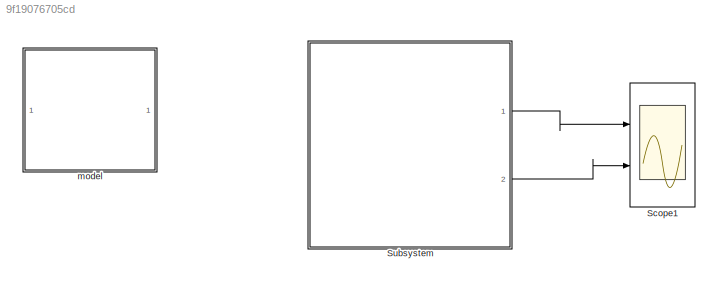
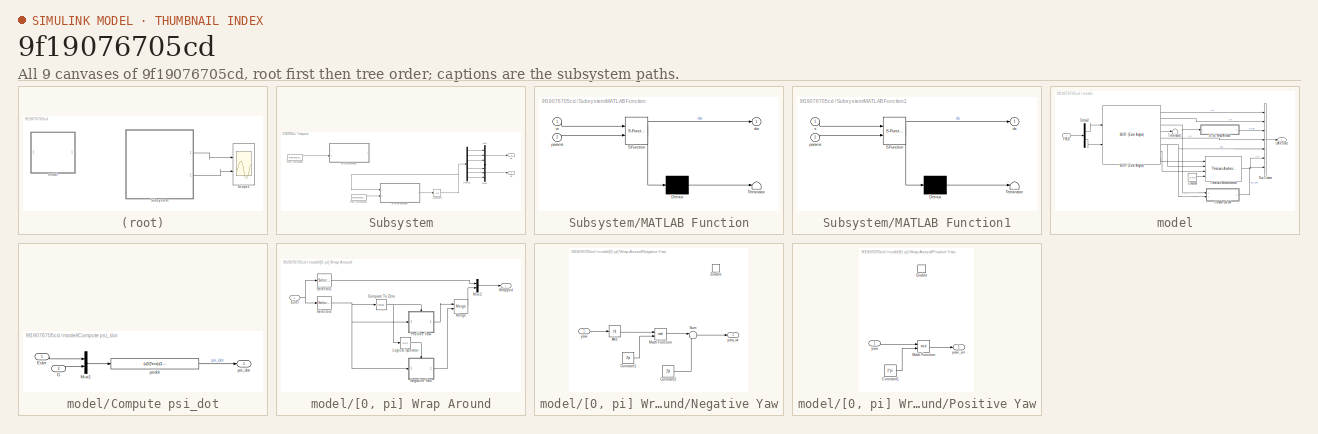
[diagram: thumbnail index - all 9 canvases of the model, root first then tree order]
MODEL slx_9f19076705cd
KIND model
BLOCK [Scope] Scope1
  Floating = off
  NumInputPorts = 2
  Ports = [2]
  ScopeSpecificationString = Simulink.scopes.TimeScopeBlockCfg('CurrentConfiguration', extmgr.ConfigurationSet(extmgr.Configuration('Core','General UI',true),extmgr.Configuration('Core','Source UI',true),extmgr.Configuration('Sources','WiredSimulink',true,'DataLoggingVariableName','ScopeData2'),extmgr.Configuration('Visuals','Time Domain',true,'SerializedDisplays',{struct('MinYLimReal','-10','MaxYLimReal','10','YLabelReal',''...<+1636ch>
BLOCK [SubSystem] Subsystem
  Ports = [0, 2]
  RequestExecContextInheritance = off
BLOCK [Demux] Subsystem/Demux
  Outputs = 6
  Ports = [1, 6]
BLOCK [FromWorkspace] Subsystem/From Workspace
  Commented = on
  VariableName = params
BLOCK [FromWorkspace] Subsystem/From Workspace1
  VariableName = params
BLOCK [Integrator] Subsystem/Integrator
  InitialCondition = params.s0
  Ports = [1, 1]
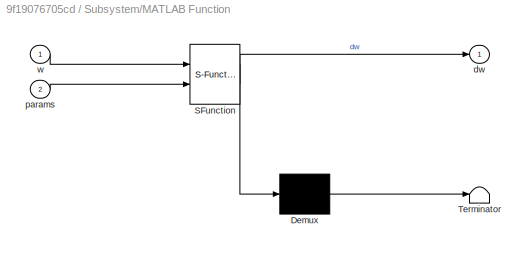
BLOCK [SubSystem] Subsystem/MATLAB Function
  Commented = on
  ErrorFcn = Stateflow.Translate.translate
  PermitHierarchicalResolution = ExplicitOnly
  Ports = [2, 1]
  RequestExecContextInheritance = off
  SFBlockType = MATLAB Function
  TreatAsAtomicUnit = on
BLOCK [Demux] Subsystem/MATLAB Function/ Demux 
  Outputs = 1
  Ports = [1, 1]
BLOCK [S-Function] Subsystem/MATLAB Function/ SFunction 
  EnableBusSupport = off
  FunctionName = sf_sfun
  PortCounts = [2 2]
  Ports = [2, 2]
  SFcnIsStateOwnerBlock = off
  SFunctionDeploymentMode = off
  Tag = Stateflow S-Function 3
BLOCK [Terminator] Subsystem/MATLAB Function/ Terminator 
BLOCK [Outport] Subsystem/MATLAB Function/dw
BLOCK [Inport] Subsystem/MATLAB Function/params
  Port = 2
BLOCK [Inport] Subsystem/MATLAB Function/w
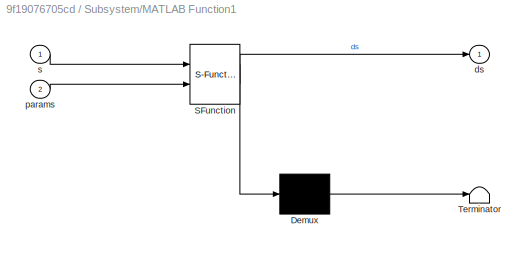
BLOCK [SubSystem] Subsystem/MATLAB Function1
  ErrorFcn = Stateflow.Translate.translate
  PermitHierarchicalResolution = ExplicitOnly
  Ports = [2, 1]
  RequestExecContextInheritance = off
  SFBlockType = MATLAB Function
  TreatAsAtomicUnit = on
BLOCK [Demux] Subsystem/MATLAB Function1/ Demux 
  Outputs = 1
  Ports = [1, 1]
BLOCK [S-Function] Subsystem/MATLAB Function1/ SFunction 
  EnableBusSupport = off
  FunctionName = sf_sfun
  PortCounts = [2 2]
  Ports = [2, 2]
  SFcnIsStateOwnerBlock = off
  SFunctionDeploymentMode = off
  Tag = Stateflow S-Function 4
BLOCK [Terminator] Subsystem/MATLAB Function1/ Terminator 
BLOCK [Outport] Subsystem/MATLAB Function1/ds
BLOCK [Inport] Subsystem/MATLAB Function1/params
  Port = 2
BLOCK [Inport] Subsystem/MATLAB Function1/s
BLOCK [Mux] Subsystem/Mux
  DisplayOption = bar
  Inputs = 3
  Ports = [3, 1]
BLOCK [Mux] Subsystem/Mux1
  DisplayOption = bar
  Inputs = 3
  Ports = [3, 1]
BLOCK [Outport] Subsystem/Vb
  Port = 2
BLOCK [Outport] Subsystem/Xe
BLOCK [SubSystem] model
  Commented = on
  Ports = [1, 1]
  RequestExecContextInheritance = off
  VariantControl = use_aerospace_blocks == 1
BLOCK [Reference] model/6DOF (Euler Angles)  REF=shared6dof/6DOF (Euler Angles)
  Ports = [2, 8]
  SourceBlock = shared6dof/6DOF (Euler Angles)
  SourceProductBaseCode = AE,PW,DR,MT,UV,VE
  SourceType = 6DOF EoM (Body Axis)
BLOCK [BusCreator] model/Bus Creator
  DisplayOption = bar
  InheritFromInputs = on
  Inputs = 7
  Ports = [7, 1]
BLOCK [SubSystem] model/Compute psi_dot
  Ports = [2, 1]
  RequestExecContextInheritance = off
BLOCK [Inport] model/Compute psi_dot/Euler
BLOCK [Inport] model/Compute psi_dot/G
  Port = 2
BLOCK [Mux] model/Compute psi_dot/Mux1
  DisplayOption = bar
  Inputs = 2
  Ports = [2, 1]
BLOCK [Outport] model/Compute psi_dot/psi_dot
  Unit = rad/S
  VectorParamsAs1DForOutWhenUnconnected = off
BLOCK [Fcn] model/Compute psi_dot/psidot
  Expr = (u[5]*sin(u[1])+u[6]*cos(u[1]))/cos(u[2])
BLOCK [Constant] model/Constant
  AttributesFormatString = %<Value>
  Value = [0 0 0]
BLOCK [Demux] model/Demux2
  Outputs = 2
  Ports = [1, 2]
BLOCK [Inport] model/FM_b
BLOCK [Terminator] model/Terminator1
BLOCK [Reference] model/Three-axis Accelerometer  REF=aerolibnav/Three-axis Accelerometer
  Ports = [4, 1]
  SourceBlock = aerolibnav/Three-axis Accelerometer
  SourceProductName = Aerospace Blockset
  SourceType = Three-axis Accelerometer
BLOCK [Outport] model/UAVState
  VectorParamsAs1DForOutWhenUnconnected = off
BLOCK [SubSystem] model/[0, pi] Wrap Around
  Ports = [1, 1]
  RequestExecContextInheritance = off
BLOCK [Reference] model/[0, pi] Wrap Around/Compare To Zero  REF=simulink/Logic and Bit
Operations/Compare
To Zero
  Ports = [1, 1]
  SourceBlock = simulink/Logic and Bit\nOperations/Compare\nTo Zero
  SourceProductBaseCode = SL
  SourceType = Compare To Zero
BLOCK [Inport] model/[0, pi] Wrap Around/Euler
BLOCK [Logic] model/[0, pi] Wrap Around/Logical Operator
  AllPortsSameDT = off
  Operator = NOT
  OutDataTypeStr = boolean
  Ports = [1, 1]
BLOCK [Merge] model/[0, pi] Wrap Around/Merge
  InitialOutput = 0
  Ports = [2, 1]
BLOCK [Mux] model/[0, pi] Wrap Around/Mux2
  DisplayOption = bar
  Inputs = 2
  Ports = [2, 1]
BLOCK [SubSystem] model/[0, pi] Wrap Around/Negative Yaw
  Ports = [1, 1, 1]
  RequestExecContextInheritance = off
BLOCK [Abs] model/[0, pi] Wrap Around/Negative Yaw/Abs
  SaturateOnIntegerOverflow = off
BLOCK [Constant] model/[0, pi] Wrap Around/Negative Yaw/Constant1
  AttributesFormatString = %<Value>
  Value = 2*pi
BLOCK [Constant] model/[0, pi] Wrap Around/Negative Yaw/Constant2
  AttributesFormatString = %<Value>
  Value = 2*pi
BLOCK [EnablePort] model/[0, pi] Wrap Around/Negative Yaw/Enable
  Ports = []
BLOCK [Math] model/[0, pi] Wrap Around/Negative Yaw/Math Function
  Operator = mod
  Ports = [2, 1]
  SignedPower = on
BLOCK [Sum] model/[0, pi] Wrap Around/Negative Yaw/Sum
  Inputs = |-+
  Ports = [2, 1]
BLOCK [Inport] model/[0, pi] Wrap Around/Negative Yaw/yaw
BLOCK [Outport] model/[0, pi] Wrap Around/Negative Yaw/yaw_wr
  VectorParamsAs1DForOutWhenUnconnected = off
BLOCK [SubSystem] model/[0, pi] Wrap Around/Positive Yaw
  Ports = [1, 1, 1]
  RequestExecContextInheritance = off
BLOCK [Constant] model/[0, pi] Wrap Around/Positive Yaw/Constant1
  AttributesFormatString = %<Value>
  Value = 2*pi
BLOCK [EnablePort] model/[0, pi] Wrap Around/Positive Yaw/Enable
  Ports = []
BLOCK [Math] model/[0, pi] Wrap Around/Positive Yaw/Math Function
  Operator = mod
  Ports = [2, 1]
  SignedPower = on
BLOCK [Inport] model/[0, pi] Wrap Around/Positive Yaw/yaw
BLOCK [Outport] model/[0, pi] Wrap Around/Positive Yaw/yaw_wr
  VectorParamsAs1DForOutWhenUnconnected = off
BLOCK [Selector] model/[0, pi] Wrap Around/Selector1
  AttributesFormatString = %<Indices>
  IndexOptions = Index vector (dialog)
  Indices = [1 2]
  InputPortWidth = 3
  OutputSizes = 1
  Ports = [1, 1]
BLOCK [Selector] model/[0, pi] Wrap Around/Selector2
  AttributesFormatString = %<Indices>
  IndexOptions = Index vector (dialog)
  Indices = [3]
  InputPortWidth = 3
  OutputSizes = 1
  Ports = [1, 1]
BLOCK [Outport] model/[0, pi] Wrap Around/Wrapped
  VectorParamsAs1DForOutWhenUnconnected = off
LINE Subsystem/Demux:1 -> Subsystem/Mux:1
LINE Subsystem/Demux:2 -> Subsystem/Mux:2
LINE Subsystem/Demux:3 -> Subsystem/Mux:3
LINE Subsystem/Demux:4 -> Subsystem/Mux1:1
LINE Subsystem/Demux:5 -> Subsystem/Mux1:2
LINE Subsystem/Demux:6 -> Subsystem/Mux1:3
LINE Subsystem/From Workspace1:1 -> Subsystem/MATLAB Function1:2
LINE Subsystem/From Workspace:1 -> Subsystem/MATLAB Function:2
NET Subsystem/Integrator:1 -> Subsystem/Demux:1, Subsystem/MATLAB Function1:1
LINE Subsystem/MATLAB Function1:1 -> Subsystem/Integrator:1
LINE Subsystem/Mux1:1 -> Subsystem/Vb:1
LINE Subsystem/Mux:1 -> Subsystem/Xe:1
LINE Subsystem:1 -> Scope1:1
LINE Subsystem:2 -> Scope1:2
LINE model/6DOF (Euler Angles):1 -> model/Bus Creator:1
LINE model/6DOF (Euler Angles):2 -> model/Bus Creator:2
NET model/6DOF (Euler Angles):3 -> model/Compute psi_dot:1, model/[0, pi] Wrap Around:1
LINE model/6DOF (Euler Angles):4 -> model/Terminator1:1
LINE model/6DOF (Euler Angles):5 -> model/Bus Creator:4
NET model/6DOF (Euler Angles):6 -> model/Bus Creator:5, model/Compute psi_dot:2, model/Three-axis Accelerometer:2
LINE model/6DOF (Euler Angles):7 -> model/Three-axis Accelerometer:3
LINE model/6DOF (Euler Angles):8 -> model/Three-axis Accelerometer:1
LINE model/Bus Creator:1 -> model/UAVState:1
LINE model/Compute psi_dot/Euler:1 -> model/Compute psi_dot/Mux1:1
LINE model/Compute psi_dot/G:1 -> model/Compute psi_dot/Mux1:2
LINE model/Compute psi_dot/Mux1:1 -> model/Compute psi_dot/psidot:1
LINE model/Compute psi_dot/psidot:1 -> model/Compute psi_dot/psi_dot:1
LINE model/Compute psi_dot:1 -> model/Bus Creator:7
LINE model/Constant:1 -> model/Three-axis Accelerometer:4
LINE model/Demux2:1 -> model/6DOF (Euler Angles):1
LINE model/Demux2:2 -> model/6DOF (Euler Angles):2
LINE model/FM_b:1 -> model/Demux2:1
LINE model/Three-axis Accelerometer:1 -> model/Bus Creator:6
NET model/[0, pi] Wrap Around/Compare To Zero:1 -> model/[0, pi] Wrap Around/Logical Operator:1, model/[0, pi] Wrap Around/Positive Yaw:enable
NET model/[0, pi] Wrap Around/Euler:1 -> model/[0, pi] Wrap Around/Selector1:1, model/[0, pi] Wrap Around/Selector2:1
LINE model/[0, pi] Wrap Around/Logical Operator:1 -> model/[0, pi] Wrap Around/Negative Yaw:enable
LINE model/[0, pi] Wrap Around/Merge:1 -> model/[0, pi] Wrap Around/Mux2:2
LINE model/[0, pi] Wrap Around/Mux2:1 -> model/[0, pi] Wrap Around/Wrapped:1
LINE model/[0, pi] Wrap Around/Negative Yaw/Abs:1 -> model/[0, pi] Wrap Around/Negative Yaw/Math Function:1
LINE model/[0, pi] Wrap Around/Negative Yaw/Constant1:1 -> model/[0, pi] Wrap Around/Negative Yaw/Math Function:2
LINE model/[0, pi] Wrap Around/Negative Yaw/Constant2:1 -> model/[0, pi] Wrap Around/Negative Yaw/Sum:2
LINE model/[0, pi] Wrap Around/Negative Yaw/Math Function:1 -> model/[0, pi] Wrap Around/Negative Yaw/Sum:1
LINE model/[0, pi] Wrap Around/Negative Yaw/Sum:1 -> model/[0, pi] Wrap Around/Negative Yaw/yaw_wr:1
LINE model/[0, pi] Wrap Around/Negative Yaw/yaw:1 -> model/[0, pi] Wrap Around/Negative Yaw/Abs:1
LINE model/[0, pi] Wrap Around/Negative Yaw:1 -> model/[0, pi] Wrap Around/Merge:2
LINE model/[0, pi] Wrap Around/Positive Yaw/Constant1:1 -> model/[0, pi] Wrap Around/Positive Yaw/Math Function:2
LINE model/[0, pi] Wrap Around/Positive Yaw/Math Function:1 -> model/[0, pi] Wrap Around/Positive Yaw/yaw_wr:1
LINE model/[0, pi] Wrap Around/Positive Yaw/yaw:1 -> model/[0, pi] Wrap Around/Positive Yaw/Math Function:1
LINE model/[0, pi] Wrap Around/Positive Yaw:1 -> model/[0, pi] Wrap Around/Merge:1
LINE model/[0, pi] Wrap Around/Selector1:1 -> model/[0, pi] Wrap Around/Mux2:1
NET model/[0, pi] Wrap Around/Selector2:1 -> model/[0, pi] Wrap Around/Compare To Zero:1, model/[0, pi] Wrap Around/Negative Yaw:1, model/[0, pi] Wrap Around/Positive Yaw:1
LINE model/[0, pi] Wrap Around:1 -> model/Bus Creator:3
note: NET lines group one-source signal fan-out (src -> all destinations, sorted); 1:1 wires keep LINE
CHART Subsystem/MATLAB Function states=1 transitions=1
  STATE_LABEL 'eML_blk_kernel()'
  STATE_LABEL 'SCRIPT:\nfunction dw = AttitudeDynamics_v1(w,params)\n\n\n\n% Initialize integration vectors and parameters\n\ndw = zeros(size(w));\n\n\n% Extract attitude, angular velocity \nq =  w(1:4);\nomega= w(5:7);\n\n\n%%%%%%%%%%%%%%%%%% Attitude Kinematics Equations (Quaternions) %%%%%%%%%%%%%%%%%%\nOm = [0, -omega(1), -omega(2), -omega(3);\n    omega(1), 0, omega(3), -omega(2);\n    omega(2), -omega(3), 0, omega(1);\n    o...<+543ch>'
CHART Subsystem/MATLAB Function1 states=1 transitions=1
  STATE_LABEL 'eML_blk_kernel()'
  STATE_LABEL 'SCRIPT:\nfunction ds = PositionDynamics_v1(s,params)\n\n    %inizializzazione\n    ds=zeros(size(s));\n    %position, linear velocity\n    ned=s(1:3);\n    velocity=s(4:6);\n\n    xdot=velocity(3)*(sin(params.eul(1))*sin(params.eul(3))+cos(params.eul(1))*cos(params.eul(3))*sin(params.eul(2)))-velocity(2)*(cos(params.eul(1))*sin(params.eul(3))-cos(params.eul(3))*sin(params.eul(1))*sin(params.eul(2)))+veloci...<+837ch>'
CHART  states=0 transitions=0
CHART  states=0 transitions=0
